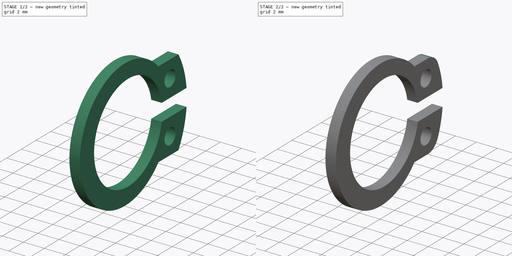
[diagram: build sequence overview — one tinted view per stage of 2, left to right]
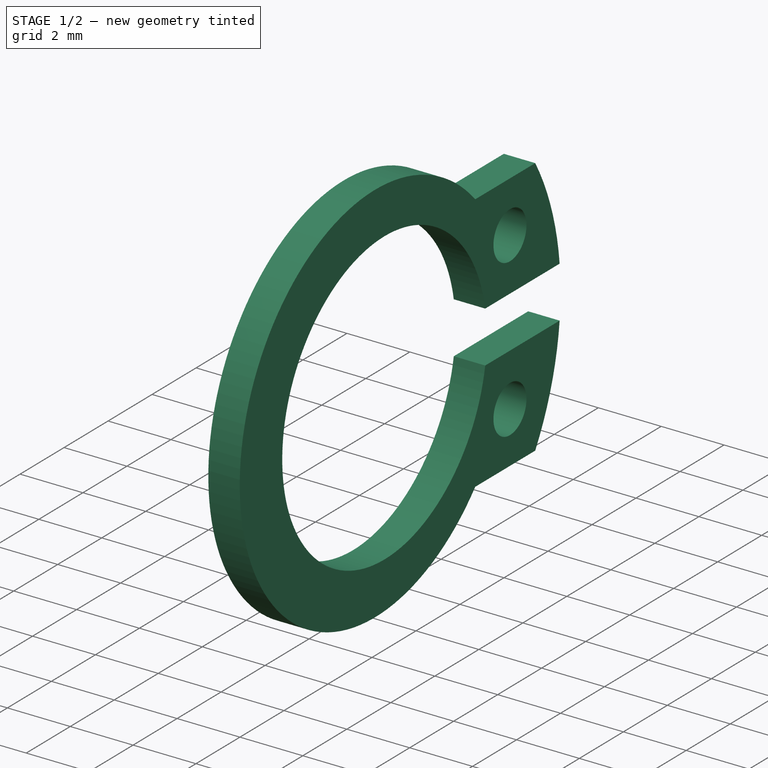
[diagram: stage 1 of 2 — iso view after this stage's code; geometry added in this stage tinted green]
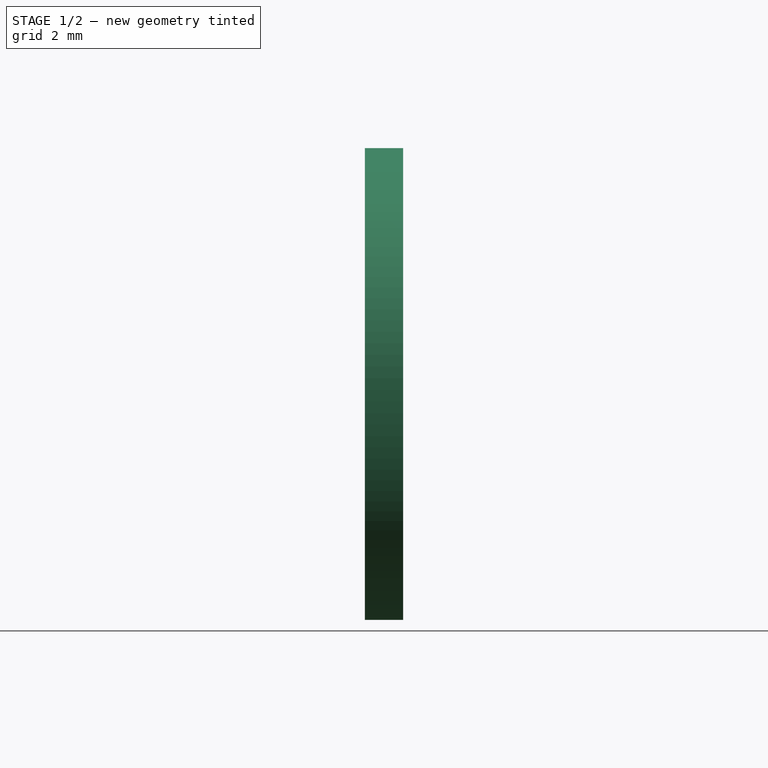
[diagram: stage 1 of 2 — front view after this stage's code; geometry added in this stage tinted green]
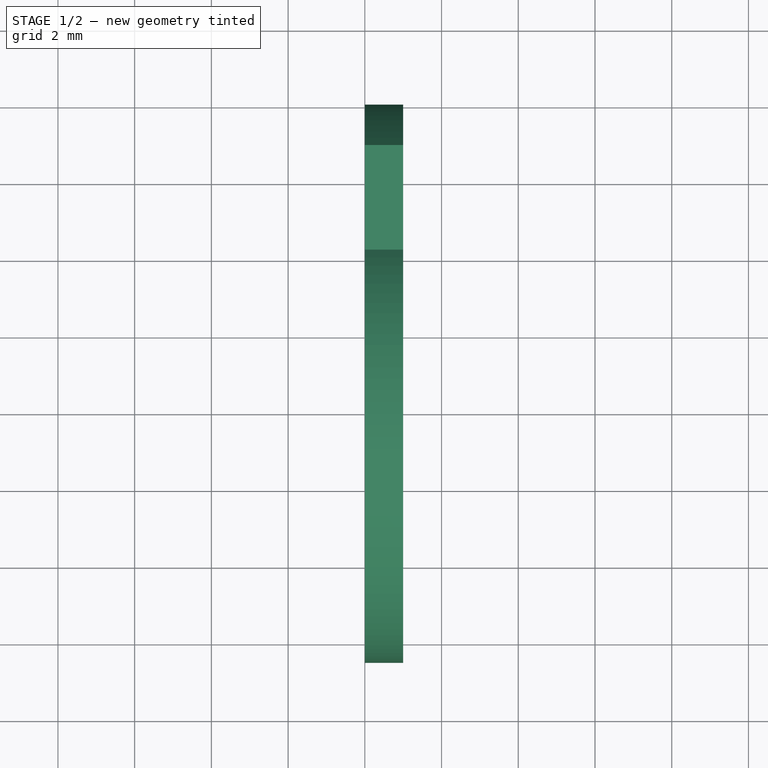
[diagram: stage 1 of 2 — top view after this stage's code; geometry added in this stage tinted green]
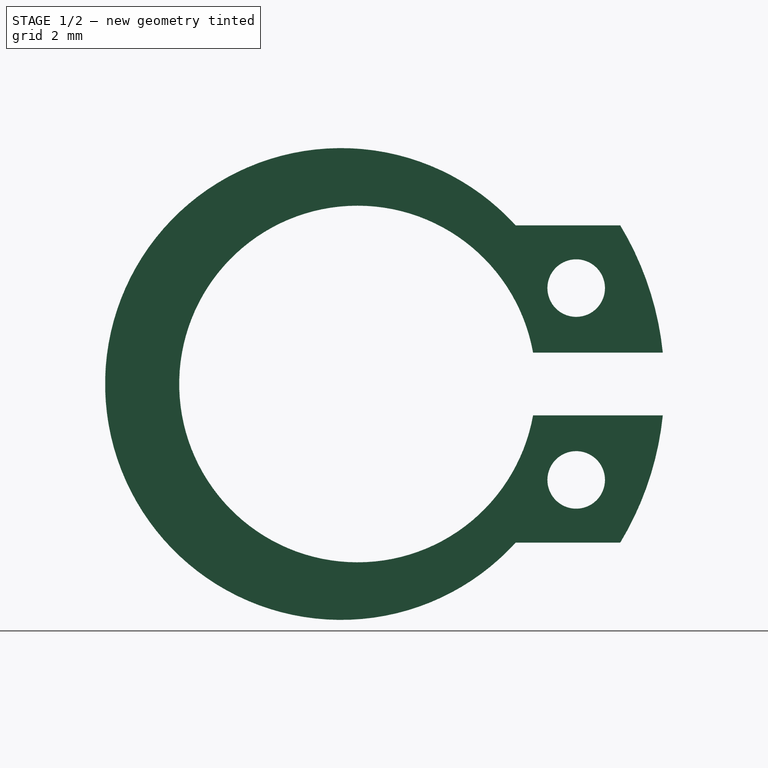
[diagram: stage 1 of 2 — right view after this stage's code; geometry added in this stage tinted green]
FCSTD DOCUMENT  (FreeCAD 0.15R4671 (Git))
Label: DIN471_CLASS_A_M10RetainingRings
License: CreativeCommons Attribution-ShareAlike
LicenseURL: http://creativecommons.org/licenses/by-sa/4.0/
objects: Sketcher::SketchObject×1, PartDesign::Pad×1, PartDesign::Fillet×1
note: 4 computed .brp shape members not serialized (recipe doc carries the construction recipe); baked Part::Feature solids carry a one-line shape summary decoded from their .brp

FEATURE [Sketcher::SketchObject] Sketch
  Placement = pos=(0,0,0) rot=(0.57735,0.57735,0.57735;2.0944rad)
  sketch-geometry (10):
    g0: ArcOfCircle CenterX=0 CenterY=0 CenterZ=0 NormalX=0 NormalY=0 NormalZ=1 Radius=4.64833 StartAngle=0.177127 EndAngle=6.10606
    g1: LineSegment StartX=4.5756 StartY=0.819045 StartZ=0 EndX=7.95796 EndY=0.819045 EndZ=0
    g2: LineSegment StartX=4.5756 StartY=-0.819045 StartZ=0 EndX=7.95796 EndY=-0.819045 EndZ=0
    g3: Circle CenterX=5.7 CenterY=2.5 CenterZ=0 NormalX=0 NormalY=0 NormalZ=1 Radius=0.75
    g4: Circle CenterX=5.7 CenterY=-2.5 CenterZ=0 NormalX=0 NormalY=0 NormalZ=1 Radius=0.75
    g5: ArcOfCircle CenterX=0 CenterY=0 CenterZ=0 NormalX=0 NormalY=0 NormalZ=1 Radius=8 StartAngle=0.10256 EndAngle=0.543142
    g6: ArcOfCircle CenterX=0 CenterY=0 CenterZ=0 NormalX=0 NormalY=0 NormalZ=1 Radius=8 StartAngle=5.74004 EndAngle=6.18062
    g7: ArcOfCircle CenterX=-0.430273 CenterY=0 CenterZ=0 NormalX=0 NormalY=0 NormalZ=1 Radius=6.14913 StartAngle=0.737436 EndAngle=5.54575
    g8: LineSegment StartX=4.12128 StartY=4.13463 StartZ=0 EndX=6.84871 EndY=4.13463 EndZ=0
    g9: LineSegment StartX=4.12128 StartY=-4.13463 StartZ=0 EndX=6.84871 EndY=-4.13463 EndZ=0
  constraints (30):
    c: Coincident(g0,g-1)
    c: Coincident(g1,g0)
    c: Horizontal(g1)
    c: Coincident(g2,g0)
    c: Horizontal(g2)
    c: Coincident(g5,g-1)
    c: Coincident(g5,g1)
    c: Coincident(g6,g-1)
    c: Coincident(g6,g2)
    c: PointOnObject(g7,g-1)
    c: Radius(g0) = 4.64833
    c: Radius(g7) = 6.14913
    c: Radius(g3) = 0.75
    c: Equal(g3,g4)
    c: DistanceX(g-1,g7) = -0.430273
    c: Equal(g1,g2)
    c: Radius(g5) = 8
    c: DistanceX(g1) = 3.38236
    c: Equal(g5,g6)
    c: Symmetric(g4,g3,g-1)
    c: DistanceX(g-1,g3) = 5.7
    c: DistanceY(g-1,g4) = -2.5
    c: Coincident(g8,g7)
    c: Horizontal(g8)
    c: Coincident(g5,g8)
    c: Coincident(g9,g7)
    c: Horizontal(g9)
    c: Coincident(g6,g9)
    c: DistanceX(g9) = 2.72743
    c: Equal(g9,g8)
FEATURE [PartDesign::Pad] Pad
  Length = 1
  Length2 = 100
  Placement = pos=(0,0,0) rot=(0.57735,0.57735,0.57735;2.0944rad)
  Sketch = -> Sketch
  Type = 0
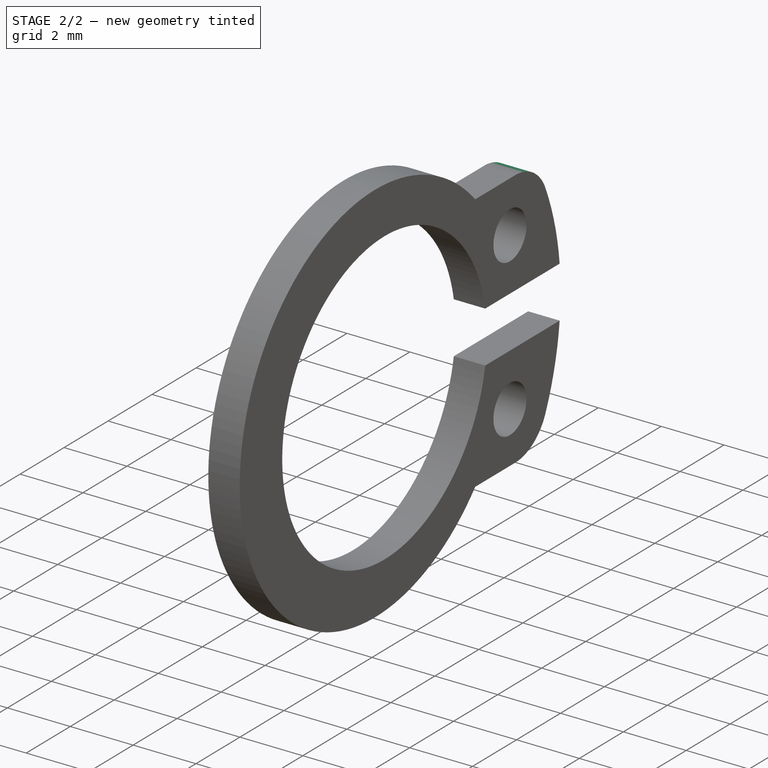
[diagram: stage 2 of 2 — iso view after this stage's code; geometry added in this stage tinted green]
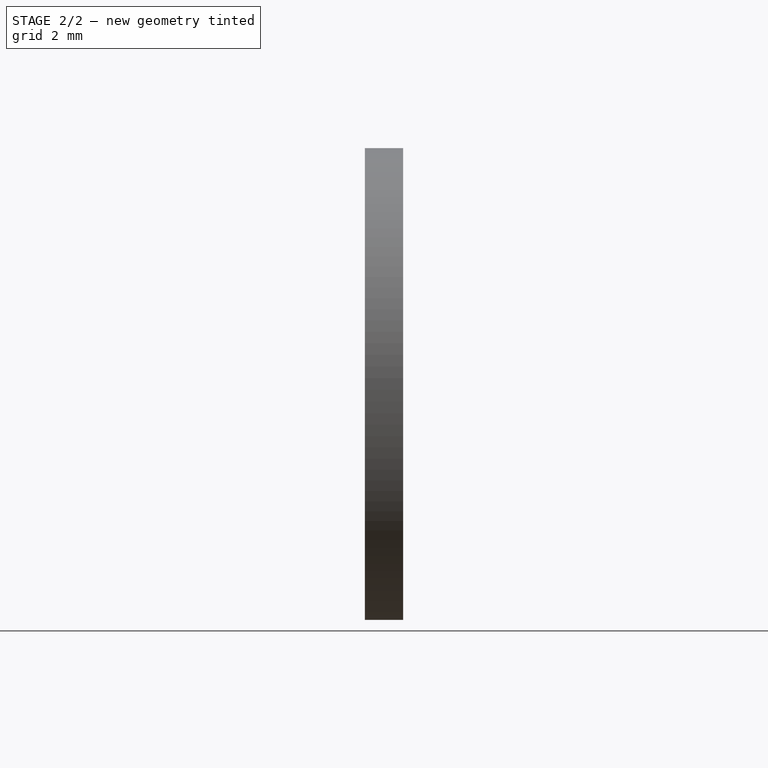
[diagram: stage 2 of 2 — front view after this stage's code; geometry added in this stage tinted green]
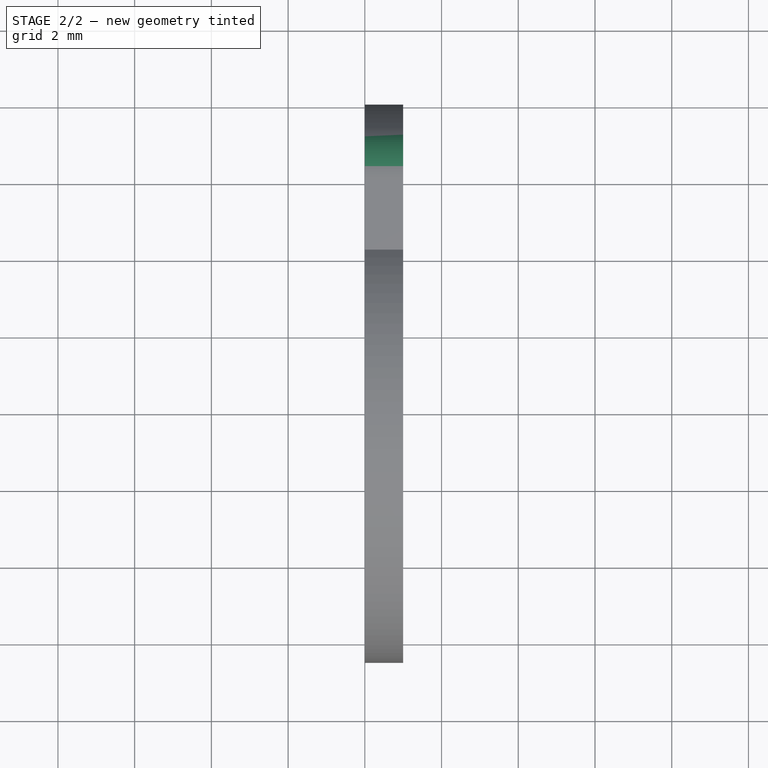
[diagram: stage 2 of 2 — top view after this stage's code; geometry added in this stage tinted green]
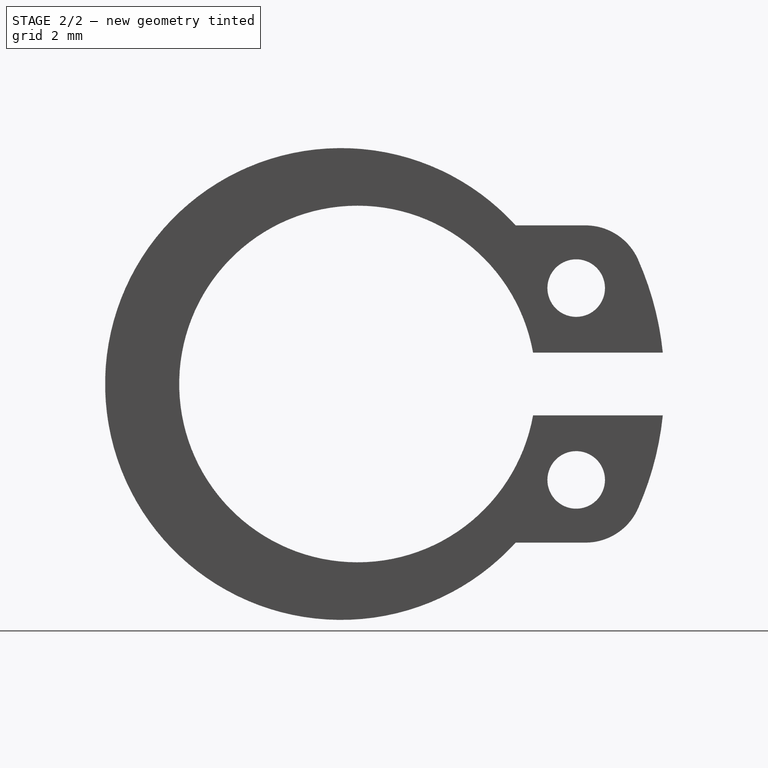
[diagram: stage 2 of 2 — right view after this stage's code; geometry added in this stage tinted green]
FEATURE [PartDesign::Fillet] Fillet
  Base = -> Pad [Edge2,Edge17]
  Placement = pos=(0,0,0) rot=(0.57735,0.57735,0.57735;2.0944rad)
  Radius = 1.5
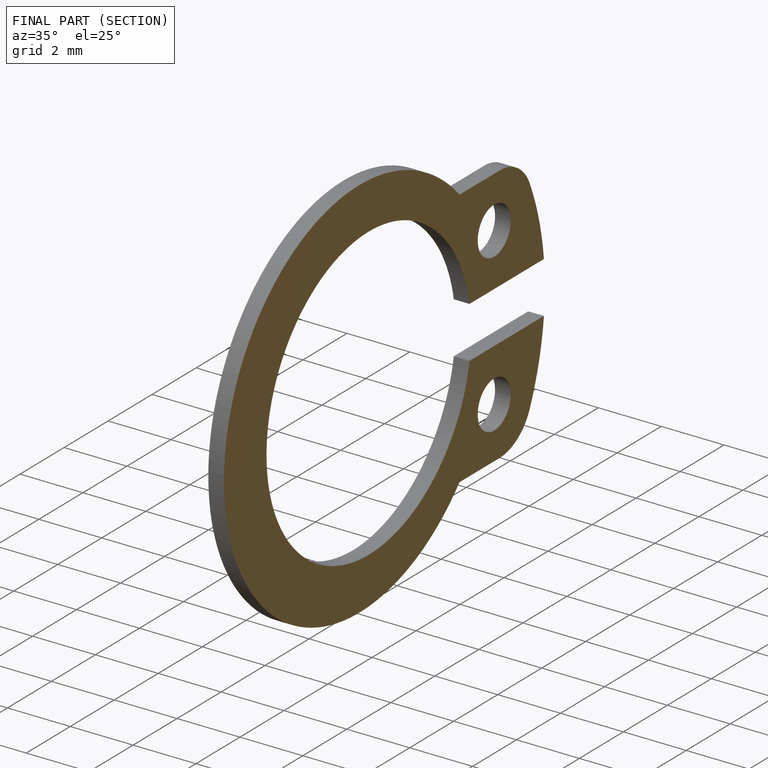
[diagram: finished part — half-section view (interior)]
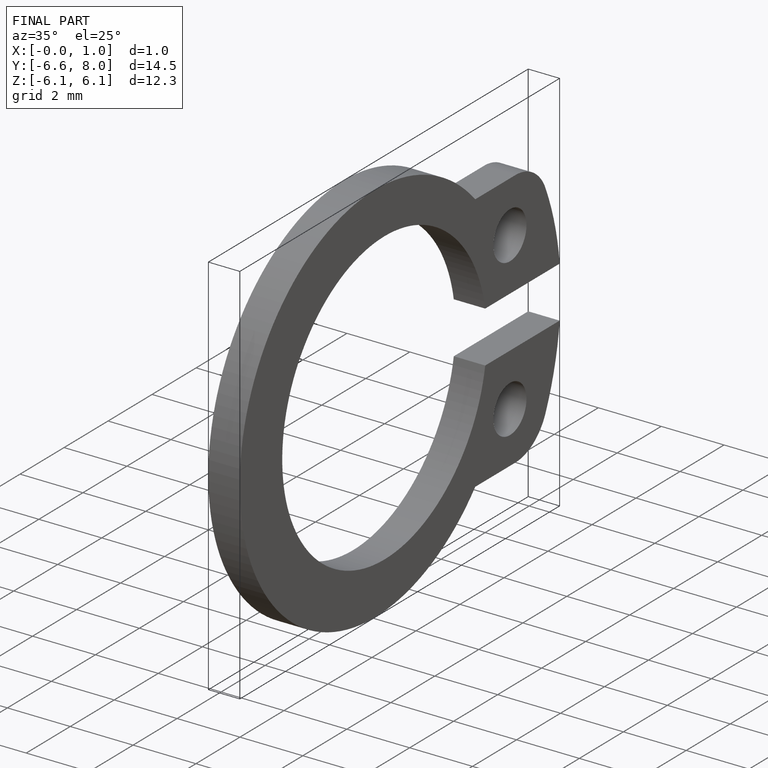
[diagram: finished part — iso view with bounding-box wireframe]
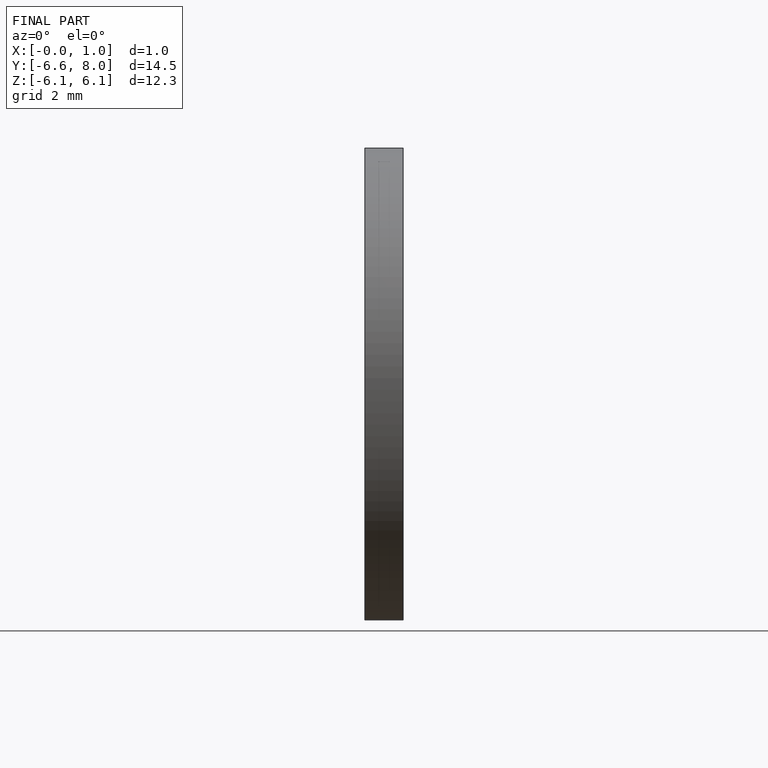
[diagram: finished part — front view with bounding-box wireframe]
